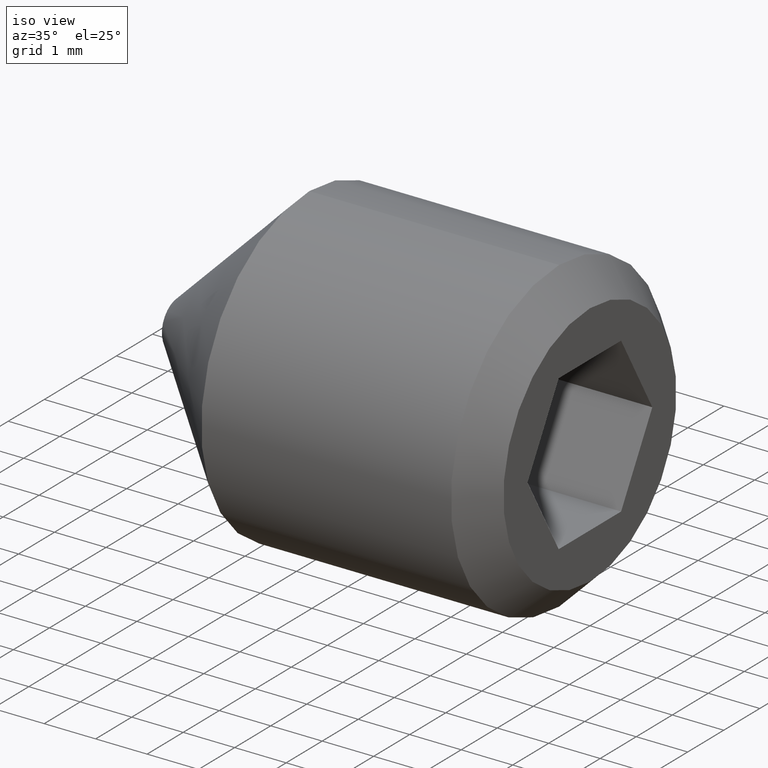
[diagram: clean part render]
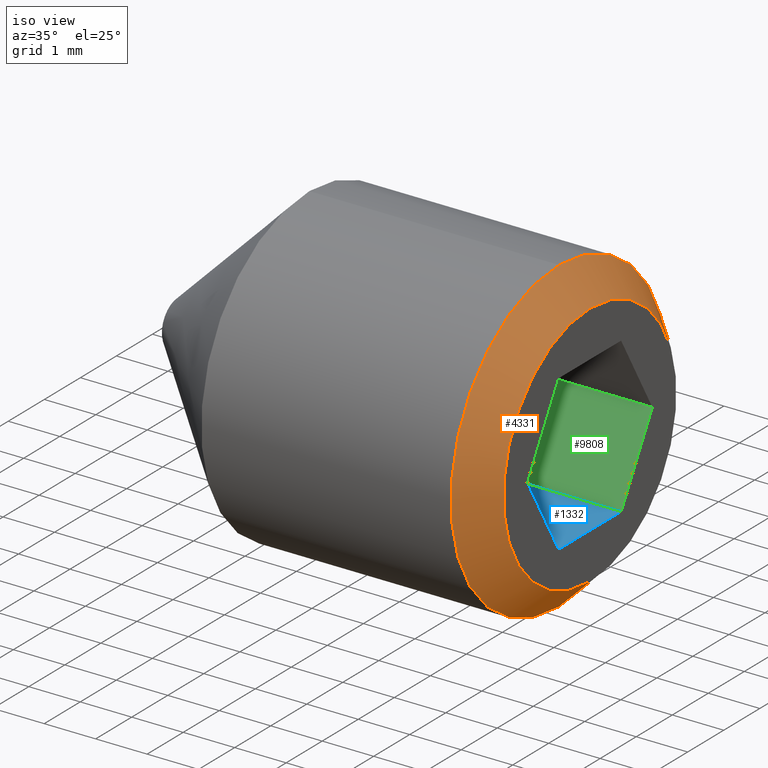
[diagram: same view with three faces highlighted in distinct colors, each labeled with its STEP entity id]
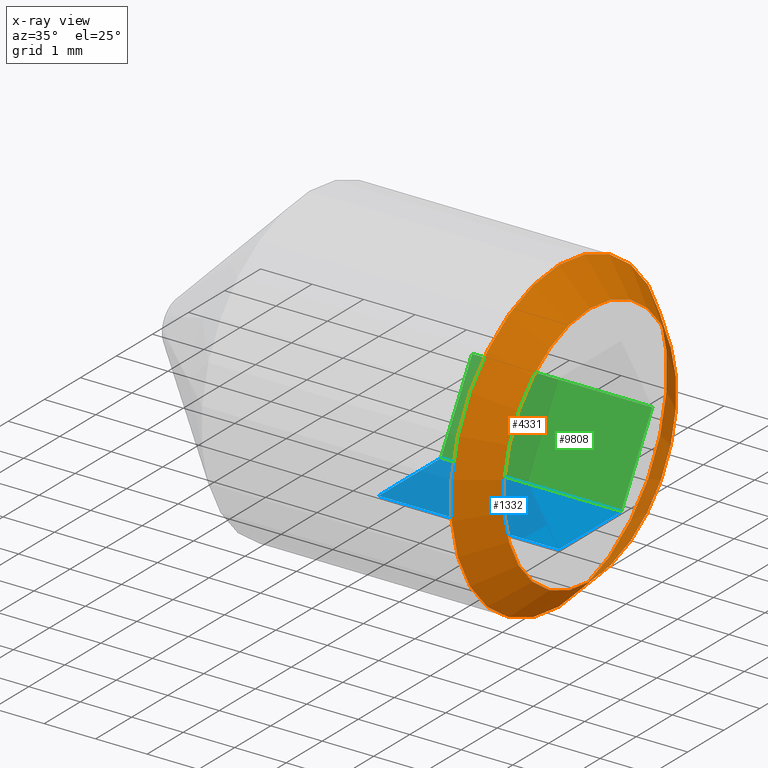
[diagram: x-ray of the same camera — body ghosted, the three highlighted faces saturated]
A machine part, iso view with three faces highlighted in distinct colors.
The next image is the same camera in x-ray (body ghosted, the three faces saturated) — at least one of them is partly hidden behind the body in this view.
Their STEP definitions:

[orange] entity #4331 — the highlighted conical surface has half-angle 45 deg.
#169 = CONICAL_SURFACE ( 'NONE', #3777, 2.400000000000001200, 0.7853981633974465000 ) ;
#331 = ORIENTED_EDGE ( 'NONE', *, *, #3933, .F. ) ;
#383 = DIRECTION ( 'NONE',  ( 1.000000000000000000, 0.0000000000000000000, 0.0000000000000000000 ) ) ;
#1100 = AXIS2_PLACEMENT_3D ( 'NONE', #3813, #383, #9634 ) ;
#1543 = CARTESIAN_POINT ( 'NONE',  ( 7.399999999999998600, 0.0000000000000000000, -3.000000000000000400 ) ) ;
#2273 = CIRCLE ( 'NONE', #1100, 2.400000000000001200 ) ;
#2345 = CARTESIAN_POINT ( 'NONE',  ( 8.000000000000000000, 0.0000000000000000000, -2.400000000000001200 ) ) ;
#2381 = VERTEX_POINT ( 'NONE', #1543 ) ;
#2771 = FACE_BOUND ( 'NONE', #6886, .T. ) ;
#2831 = DIRECTION ( 'NONE',  ( 0.0000000000000000000, 0.0000000000000000000, -1.000000000000000000 ) ) ;
#3282 = DIRECTION ( 'NONE',  ( 0.0000000000000000000, 0.0000000000000000000, 1.000000000000000000 ) ) ;
#3777 = AXIS2_PLACEMENT_3D ( 'NONE', #9259, #5749, #3282 ) ;
#3813 = CARTESIAN_POINT ( 'NONE',  ( 8.000000000000000000, 0.0000000000000000000, 0.0000000000000000000 ) ) ;
#3933 = EDGE_CURVE ( 'NONE', #6865, #6865, #2273, .T. ) ;
#4331 = ADVANCED_FACE ( 'NONE', ( #5810, #2771 ), #169, .T. ) ;
#5749 = DIRECTION ( 'NONE',  ( -1.000000000000000000, 0.0000000000000000000, 0.0000000000000000000 ) ) ;
#5810 = FACE_OUTER_BOUND ( 'NONE', #5864, .T. ) ;
#5864 = EDGE_LOOP ( 'NONE', ( #9577 ) ) ;
#6266 = CARTESIAN_POINT ( 'NONE',  ( 7.399999999999998600, 0.0000000000000000000, 0.0000000000000000000 ) ) ;
#6707 = EDGE_CURVE ( 'NONE', #2381, #2381, #10275, .T. ) ;
#6865 = VERTEX_POINT ( 'NONE', #2345 ) ;
#6886 = EDGE_LOOP ( 'NONE', ( #331 ) ) ;
#6892 = AXIS2_PLACEMENT_3D ( 'NONE', #6266, #8753, #2831 ) ;
#8753 = DIRECTION ( 'NONE',  ( -1.000000000000000000, 0.0000000000000000000, 0.0000000000000000000 ) ) ;
#9259 = CARTESIAN_POINT ( 'NONE',  ( 8.000000000000000000, 0.0000000000000000000, 0.0000000000000000000 ) ) ;
#9577 = ORIENTED_EDGE ( 'NONE', *, *, #6707, .F. ) ;
#9634 = DIRECTION ( 'NONE',  ( 0.0000000000000000000, 0.0000000000000000000, -1.000000000000000000 ) ) ;
#10275 = CIRCLE ( 'NONE', #6892, 3.000000000000000400 ) ;

[blue] entity #1332 — the highlighted planar face has unit normal (0, 0, -1).
#300 = CARTESIAN_POINT ( 'NONE',  ( 4.500000000000000900, -0.8660254037844388200, -1.500000000000000000 ) ) ;
#306 = VECTOR ( 'NONE', #6177, 1000.000000000000000 ) ;
#1061 = VECTOR ( 'NONE', #5045, 1000.000000000000000 ) ;
#1298 = CARTESIAN_POINT ( 'NONE',  ( 8.000000000000000000, -0.8660254037844388200, -1.499999999999999800 ) ) ;
#1332 = ADVANCED_FACE ( 'NONE', ( #9854 ), #3685, .F. ) ;
#1955 = EDGE_CURVE ( 'NONE', #3269, #7071, #9319, .T. ) ;
#2032 = CARTESIAN_POINT ( 'NONE',  ( 4.500000000000000900, -0.8660254037844388200, -1.500000000000000000 ) ) ;
#2180 = EDGE_CURVE ( 'NONE', #2380, #3269, #7376, .T. ) ;
#2380 = VERTEX_POINT ( 'NONE', #9559 ) ;
#2425 = DIRECTION ( 'NONE',  ( 0.0000000000000000000, 1.000000000000000000, 0.0000000000000000000 ) ) ;
#2569 = CARTESIAN_POINT ( 'NONE',  ( 4.500000000000000900, -0.8660254037844388200, -1.500000000000000000 ) ) ;
#3269 = VERTEX_POINT ( 'NONE', #3289 ) ;
#3289 = CARTESIAN_POINT ( 'NONE',  ( 4.500000000000000900, 0.8660254037844389300, -1.500000000000000000 ) ) ;
#3424 = ORIENTED_EDGE ( 'NONE', *, *, #8307, .T. ) ;
#3682 = VECTOR ( 'NONE', #4748, 1000.000000000000000 ) ;
#3685 = PLANE ( 'NONE',  #5462 ) ;
#4437 = EDGE_LOOP ( 'NONE', ( #3424, #8837, #7206, #7345 ) ) ;
#4650 = LINE ( 'NONE', #5042, #7538 ) ;
#4712 = CARTESIAN_POINT ( 'NONE',  ( 4.500000000000000900, 0.8660254037844389300, -1.500000000000000000 ) ) ;
#4748 = DIRECTION ( 'NONE',  ( 1.000000000000000000, -0.0000000000000000000, 6.123031769111886300E-017 ) ) ;
#5042 = CARTESIAN_POINT ( 'NONE',  ( 8.000000000000000000, -0.8660254037844388200, -1.499999999999999800 ) ) ;
#5045 = DIRECTION ( 'NONE',  ( 0.0000000000000000000, 1.000000000000000000, 0.0000000000000000000 ) ) ;
#5462 = AXIS2_PLACEMENT_3D ( 'NONE', #2032, #8725, #7237 ) ;
#6177 = DIRECTION ( 'NONE',  ( 1.000000000000000000, -0.0000000000000000000, 6.123031769111886300E-017 ) ) ;
#7071 = VERTEX_POINT ( 'NONE', #9182 ) ;
#7206 = ORIENTED_EDGE ( 'NONE', *, *, #2180, .F. ) ;
#7237 = DIRECTION ( 'NONE',  ( -1.000000000000000000, 0.0000000000000000000, -6.123031769111886300E-017 ) ) ;
#7300 = LINE ( 'NONE', #300, #306 ) ;
#7345 = ORIENTED_EDGE ( 'NONE', *, *, #7960, .T. ) ;
#7376 = LINE ( 'NONE', #2569, #1061 ) ;
#7538 = VECTOR ( 'NONE', #2425, 1000.000000000000000 ) ;
#7960 = EDGE_CURVE ( 'NONE', #2380, #10233, #7300, .T. ) ;
#8307 = EDGE_CURVE ( 'NONE', #10233, #7071, #4650, .T. ) ;
#8725 = DIRECTION ( 'NONE',  ( 6.123031769111886300E-017, 0.0000000000000000000, -1.000000000000000000 ) ) ;
#8837 = ORIENTED_EDGE ( 'NONE', *, *, #1955, .F. ) ;
#9182 = CARTESIAN_POINT ( 'NONE',  ( 8.000000000000000000, 0.8660254037844389300, -1.499999999999999800 ) ) ;
#9319 = LINE ( 'NONE', #4712, #3682 ) ;
#9559 = CARTESIAN_POINT ( 'NONE',  ( 4.500000000000000900, -0.8660254037844388200, -1.500000000000000000 ) ) ;
#9854 = FACE_OUTER_BOUND ( 'NONE', #4437, .T. ) ;
#10233 = VERTEX_POINT ( 'NONE', #1298 ) ;

[green] entity #9808 — the highlighted planar face has unit normal (0, 0.866, -0.5).
#53 = CARTESIAN_POINT ( 'NONE',  ( 8.000000000000000000, 0.8660254037844389300, -1.499999999999999800 ) ) ;
#168 = CARTESIAN_POINT ( 'NONE',  ( 8.000000000000000000, 1.732050807568877900, 4.034455522966426400E-016 ) ) ;
#1317 = LINE ( 'NONE', #4738, #3286 ) ;
#1513 = DIRECTION ( 'NONE',  ( 0.0000000000000000000, 0.5000000000000001100, 0.8660254037844386000 ) ) ;
#1610 = EDGE_CURVE ( 'NONE', #7071, #8846, #8041, .T. ) ;
#1955 = EDGE_CURVE ( 'NONE', #3269, #7071, #9319, .T. ) ;
#2008 = CARTESIAN_POINT ( 'NONE',  ( 4.500000000000000900, 1.732050807568877900, 1.891394403777266000E-016 ) ) ;
#2439 = CARTESIAN_POINT ( 'NONE',  ( 4.500000000000000900, 0.8660254037844389300, -1.500000000000000000 ) ) ;
#2472 = ORIENTED_EDGE ( 'NONE', *, *, #2885, .F. ) ;
#2535 = DIRECTION ( 'NONE',  ( 1.000000000000000000, -0.0000000000000000000, 6.123031769111886300E-017 ) ) ;
#2878 = ORIENTED_EDGE ( 'NONE', *, *, #8368, .F. ) ;
#2885 = EDGE_CURVE ( 'NONE', #3269, #5603, #1317, .T. ) ;
#3151 = VECTOR ( 'NONE', #10173, 1000.000000000000100 ) ;
#3269 = VERTEX_POINT ( 'NONE', #3289 ) ;
#3286 = VECTOR ( 'NONE', #1513, 1000.000000000000100 ) ;
#3289 = CARTESIAN_POINT ( 'NONE',  ( 4.500000000000000900, 0.8660254037844389300, -1.500000000000000000 ) ) ;
#3524 = CARTESIAN_POINT ( 'NONE',  ( 4.500000000000000900, 1.732050807568877900, 1.891394403777266000E-016 ) ) ;
#3682 = VECTOR ( 'NONE', #4748, 1000.000000000000000 ) ;
#4712 = CARTESIAN_POINT ( 'NONE',  ( 4.500000000000000900, 0.8660254037844389300, -1.500000000000000000 ) ) ;
#4738 = CARTESIAN_POINT ( 'NONE',  ( 4.500000000000000900, 0.8660254037844389300, -1.500000000000000000 ) ) ;
#4748 = DIRECTION ( 'NONE',  ( 1.000000000000000000, -0.0000000000000000000, 6.123031769111886300E-017 ) ) ;
#4770 = ORIENTED_EDGE ( 'NONE', *, *, #1955, .T. ) ;
#5314 = ORIENTED_EDGE ( 'NONE', *, *, #1610, .T. ) ;
#5603 = VERTEX_POINT ( 'NONE', #2008 ) ;
#5829 = DIRECTION ( 'NONE',  ( 3.061515884555943800E-017, 0.8660254037844387100, -0.5000000000000001100 ) ) ;
#7005 = FACE_OUTER_BOUND ( 'NONE', #10271, .T. ) ;
#7071 = VERTEX_POINT ( 'NONE', #9182 ) ;
#8041 = LINE ( 'NONE', #53, #3151 ) ;
#8199 = VECTOR ( 'NONE', #2535, 1000.000000000000000 ) ;
#8363 = DIRECTION ( 'NONE',  ( 0.0000000000000000000, 0.5000000000000000000, 0.8660254037844386000 ) ) ;
#8368 = EDGE_CURVE ( 'NONE', #5603, #8846, #10017, .T. ) ;
#8846 = VERTEX_POINT ( 'NONE', #168 ) ;
#9058 = AXIS2_PLACEMENT_3D ( 'NONE', #2439, #5829, #8363 ) ;
#9182 = CARTESIAN_POINT ( 'NONE',  ( 8.000000000000000000, 0.8660254037844389300, -1.499999999999999800 ) ) ;
#9319 = LINE ( 'NONE', #4712, #3682 ) ;
#9808 = ADVANCED_FACE ( 'NONE', ( #7005 ), #10860, .F. ) ;
#10017 = LINE ( 'NONE', #3524, #8199 ) ;
#10173 = DIRECTION ( 'NONE',  ( 0.0000000000000000000, 0.5000000000000001100, 0.8660254037844386000 ) ) ;
#10271 = EDGE_LOOP ( 'NONE', ( #5314, #2878, #2472, #4770 ) ) ;
#10860 = PLANE ( 'NONE',  #9058 ) ;